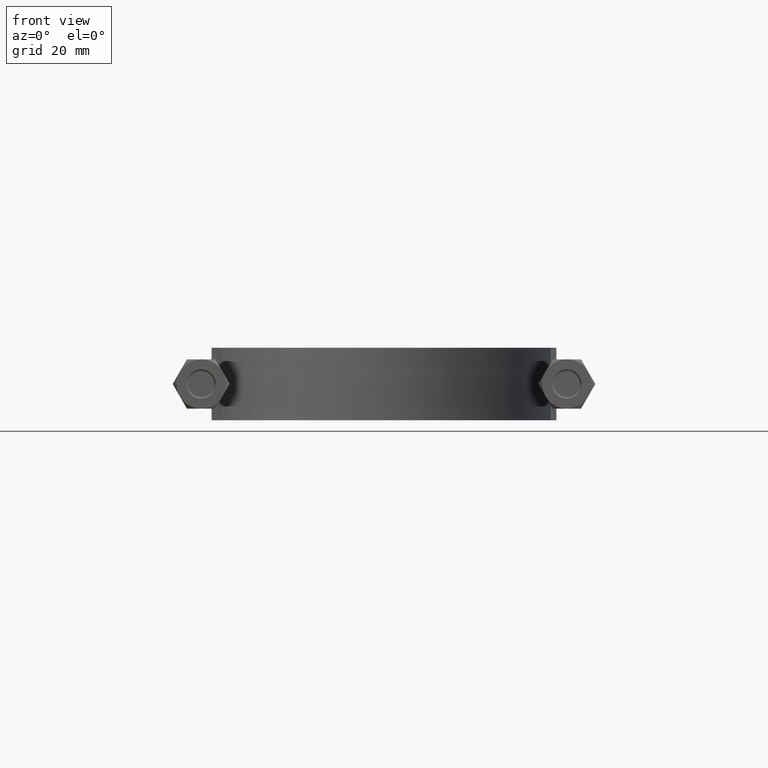
[diagram: clean part render]
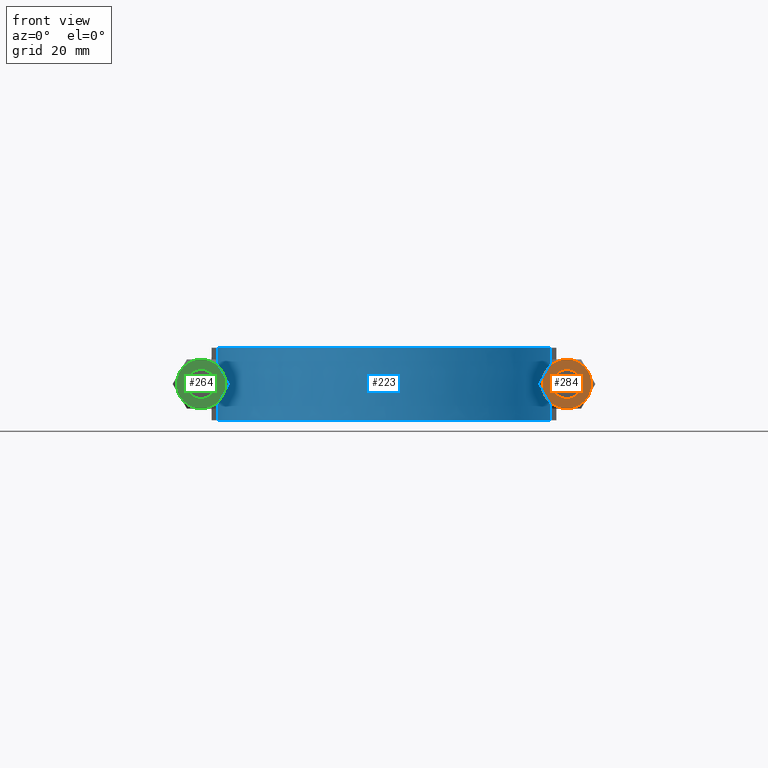
[diagram: same view with three faces highlighted in distinct colors, each labeled with its STEP entity id]
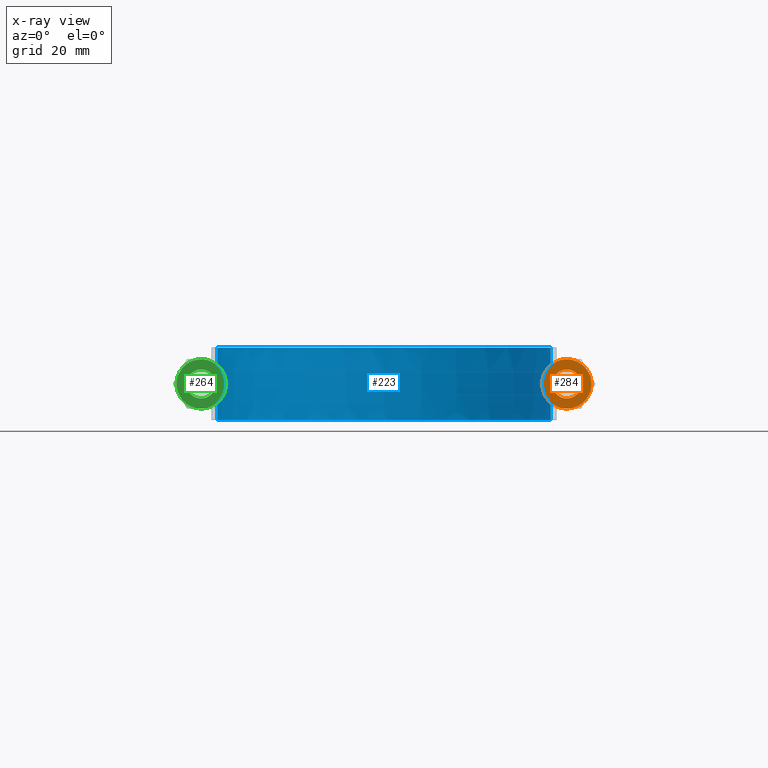
[diagram: x-ray of the same camera — body ghosted, the three highlighted faces saturated]
A machine part, front view with three faces highlighted in distinct colors.
The next image is the same camera in x-ray (body ghosted, the three faces saturated) — at least one of them is partly hidden behind the body in this view.
Their STEP definitions:

[orange] entity #284 — the highlighted planar face has unit normal (0, 1, 0).
#284 = ADVANCED_FACE( '', ( #441, #442 ), #443, .F. );
#441 = FACE_OUTER_BOUND( '', #1263, .T. );
#442 = FACE_BOUND( '', #1264, .T. );
#443 = PLANE( '', #1265 );
#1263 = EDGE_LOOP( '', ( #1741, #1742, #1743, #1744, #1745, #1746 ) );
#1264 = EDGE_LOOP( '', ( #1747 ) );
#1265 = AXIS2_PLACEMENT_3D( '', #1748, #1749, #1750 );
#1741 = ORIENTED_EDGE( '', *, *, #1955, .F. );
#1742 = ORIENTED_EDGE( '', *, *, #1923, .F. );
#1743 = ORIENTED_EDGE( '', *, *, #1945, .F. );
#1744 = ORIENTED_EDGE( '', *, *, #1956, .F. );
#1745 = ORIENTED_EDGE( '', *, *, #1917, .F. );
#1746 = ORIENTED_EDGE( '', *, *, #1957, .F. );
#1747 = ORIENTED_EDGE( '', *, *, #1954, .T. );
#1748 = CARTESIAN_POINT( '', ( 63.0000000000000, 20.0000000000000, -2.44921270764476E-016 ) );
#1749 = DIRECTION( '', ( 9.18247024260625E-049, 1.00000000000000, 6.12303176911190E-017 ) );
#1750 = DIRECTION( '', ( 1.00000000000000, 0.000000000000000, -1.49966072182214E-032 ) );
#1917 = EDGE_CURVE( '', #2130, #2132, #2133, .T. );
#1923 = EDGE_CURVE( '', #2142, #2143, #2144, .T. );
#1945 = EDGE_CURVE( '', #2182, #2142, #2183, .T. );
#1954 = EDGE_CURVE( '', #2196, #2196, #2197, .T. );
#1955 = EDGE_CURVE( '', #2143, #2198, #2199, .T. );
#1956 = EDGE_CURVE( '', #2132, #2182, #2200, .T. );
#1957 = EDGE_CURVE( '', #2198, #2130, #2201, .T. );
#2130 = VERTEX_POINT( '', #2694 );
#2132 = VERTEX_POINT( '', #2701 );
#2133 = CIRCLE( '', #2702, 8.50000000000000 );
#2142 = VERTEX_POINT( '', #2724 );
#2143 = VERTEX_POINT( '', #2725 );
#2144 = CIRCLE( '', #2726, 8.50000000000000 );
#2182 = VERTEX_POINT( '', #2787 );
#2183 = CIRCLE( '', #2788, 8.50000000000000 );
#2196 = VERTEX_POINT( '', #2815 );
#2197 = CIRCLE( '', #2816, 5.00000000000000 );
#2198 = VERTEX_POINT( '', #2817 );
#2199 = CIRCLE( '', #2818, 8.50000000000000 );
#2200 = CIRCLE( '', #2819, 8.50000000000000 );
#2201 = CIRCLE( '', #2820, 8.50000000000000 );
#2694 = CARTESIAN_POINT( '', ( 70.3612159321678, 20.0000000000000, 4.25000000000000 ) );
#2701 = CARTESIAN_POINT( '', ( 70.3612159321678, 20.0000000000000, -4.24999999999999 ) );
#2702 = AXIS2_PLACEMENT_3D( '', #3008, #3009, #3010 );
#2724 = CARTESIAN_POINT( '', ( 55.6387840678323, 20.0000000000000, -4.25000000000000 ) );
#2725 = CARTESIAN_POINT( '', ( 55.6387840678323, 20.0000000000000, 4.25000000000000 ) );
#2726 = AXIS2_PLACEMENT_3D( '', #3014, #3015, #3016 );
#2787 = CARTESIAN_POINT( '', ( 63.0000000000000, 20.0000000000000, -8.50000000000000 ) );
#2788 = AXIS2_PLACEMENT_3D( '', #3055, #3056, #3057 );
#2815 = CARTESIAN_POINT( '', ( 63.0000000000000, 20.0000000000000, 5.00000000000000 ) );
#2816 = AXIS2_PLACEMENT_3D( '', #3068, #3069, #3070 );
#2817 = CARTESIAN_POINT( '', ( 63.0000000000000, 20.0000000000000, 8.50000000000000 ) );
#2818 = AXIS2_PLACEMENT_3D( '', #3071, #3072, #3073 );
#2819 = AXIS2_PLACEMENT_3D( '', #3074, #3075, #3076 );
#2820 = AXIS2_PLACEMENT_3D( '', #3077, #3078, #3079 );
#3008 = CARTESIAN_POINT( '', ( 63.0000000000000, 20.0000000000000, -2.44921270764476E-016 ) );
#3009 = DIRECTION( '', ( 9.18247024260625E-049, 1.00000000000000, 6.12303176911190E-017 ) );
#3010 = DIRECTION( '', ( 0.000000000000000, -6.12303176911190E-017, 1.00000000000000 ) );
#3014 = CARTESIAN_POINT( '', ( 63.0000000000000, 20.0000000000000, -2.44921270764476E-016 ) );
#3015 = DIRECTION( '', ( 9.18247024260625E-049, 1.00000000000000, 6.12303176911190E-017 ) );
#3016 = DIRECTION( '', ( 0.000000000000000, -6.12303176911190E-017, 1.00000000000000 ) );
#3055 = CARTESIAN_POINT( '', ( 63.0000000000000, 20.0000000000000, -2.44921270764476E-016 ) );
#3056 = DIRECTION( '', ( 9.18247024260625E-049, 1.00000000000000, 6.12303176911190E-017 ) );
#3057 = DIRECTION( '', ( 0.000000000000000, -6.12303176911190E-017, 1.00000000000000 ) );
#3068 = CARTESIAN_POINT( '', ( 63.0000000000000, 20.0000000000000, -2.44921270764476E-016 ) );
#3069 = DIRECTION( '', ( 9.18247024260625E-049, 1.00000000000000, 6.12303176911190E-017 ) );
#3070 = DIRECTION( '', ( 0.000000000000000, -6.12303176911190E-017, 1.00000000000000 ) );
#3071 = CARTESIAN_POINT( '', ( 63.0000000000000, 20.0000000000000, -2.44921270764476E-016 ) );
#3072 = DIRECTION( '', ( 9.18247024260625E-049, 1.00000000000000, 6.12303176911190E-017 ) );
#3073 = DIRECTION( '', ( 0.000000000000000, -6.12303176911190E-017, 1.00000000000000 ) );
#3074 = CARTESIAN_POINT( '', ( 63.0000000000000, 20.0000000000000, -2.44921270764476E-016 ) );
#3075 = DIRECTION( '', ( 9.18247024260625E-049, 1.00000000000000, 6.12303176911190E-017 ) );
#3076 = DIRECTION( '', ( 0.000000000000000, -6.12303176911190E-017, 1.00000000000000 ) );
#3077 = CARTESIAN_POINT( '', ( 63.0000000000000, 20.0000000000000, -2.44921270764476E-016 ) );
#3078 = DIRECTION( '', ( 9.18247024260625E-049, 1.00000000000000, 6.12303176911190E-017 ) );
#3079 = DIRECTION( '', ( 0.000000000000000, -6.12303176911190E-017, 1.00000000000000 ) );

[blue] entity #223 — the highlighted face is a SurfaceOfExtrusion surface.
#223 = ADVANCED_FACE( '', ( #303 ), #304, .T. );
#303 = FACE_OUTER_BOUND( '', #965, .T. );
#304 = SURFACE_OF_LINEAR_EXTRUSION( '', #966, #967 );
#965 = EDGE_LOOP( '', ( #1309, #1310, #1311, #1312 ) );
#966 = B_SPLINE_CURVE_WITH_KNOTS( '', 3, ( #1313, #1314, #1315, #1316, #1317, #1318, #1319, #1320, #1321, #1322, #1323, #1324, #1325, #1326, #1327, #1328 ), .UNSPECIFIED., .F., .F., ( 4, 3, 1, 1, 1, 1, 1, 1, 3, 4 ), ( -8.93693843594010, -8.00000000000000, -7.00000000000000, -6.00000000000000, -5.00000000000000, -4.00000000000000, -3.00000000000000, -2.00000000000000, -1.00000000000000, -0.0630615640599001 ), .UNSPECIFIED. );
#967 = VECTOR( '', #1329, 1000.00000000000 );
#1309 = ORIENTED_EDGE( '', *, *, #1817, .T. );
#1310 = ORIENTED_EDGE( '', *, *, #1827, .T. );
#1311 = ORIENTED_EDGE( '', *, *, #1822, .F. );
#1312 = ORIENTED_EDGE( '', *, *, #1828, .T. );
#1313 = CARTESIAN_POINT( '', ( 57.4000000000000, 79.3000000000000, 12.5000100000910 ) );
#1314 = CARTESIAN_POINT( '', ( 57.4000000000000, 98.0700000000000, 12.5000100000910 ) );
#1315 = CARTESIAN_POINT( '', ( 57.4000000000000, 116.840000000000, 12.5000100000910 ) );
#1316 = CARTESIAN_POINT( '', ( 57.4000000000000, 135.610000000000, 12.5000100000910 ) );
#1317 = CARTESIAN_POINT( '', ( 57.4000000000000, 144.180493203978, 12.5000100000910 ) );
#1318 = CARTESIAN_POINT( '', ( 53.4810424094545, 161.371852668646, 12.5000100000910 ) );
#1319 = CARTESIAN_POINT( '', ( 37.0100296725023, 182.017335605858, 12.5000100000910 ) );
#1320 = CARTESIAN_POINT( '', ( 13.2087266606841, 193.481567469912, 12.5000100000910 ) );
#1321 = CARTESIAN_POINT( '', ( -13.2087266606841, 193.481567469912, 12.5000100000910 ) );
#1322 = CARTESIAN_POINT( '', ( -37.0100296725023, 182.017335605858, 12.5000100000910 ) );
#1323 = CARTESIAN_POINT( '', ( -53.4810424094545, 161.371852668646, 12.5000100000910 ) );
#1324 = CARTESIAN_POINT( '', ( -57.4000000000000, 144.180493203978, 12.5000100000910 ) );
#1325 = CARTESIAN_POINT( '', ( -57.4000000000000, 135.610000000000, 12.5000100000910 ) );
#1326 = CARTESIAN_POINT( '', ( -57.4000000000000, 116.840000000000, 12.5000100000910 ) );
#1327 = CARTESIAN_POINT( '', ( -57.4000000000000, 98.0700000000000, 12.5000100000910 ) );
#1328 = CARTESIAN_POINT( '', ( -57.4000000000000, 79.3000000000000, 12.5000100000910 ) );
#1329 = DIRECTION( '', ( 0.000000000000000, 0.000000000000000, -1.00000000000000 ) );
#1817 = EDGE_CURVE( '', #1967, #1968, #1969, .T. );
#1822 = EDGE_CURVE( '', #1975, #1978, #1979, .T. );
#1827 = EDGE_CURVE( '', #1968, #1978, #1985, .F. );
#1828 = EDGE_CURVE( '', #1975, #1967, #1986, .T. );
#1967 = VERTEX_POINT( '', #2213 );
#1968 = VERTEX_POINT( '', #2214 );
#1969 = LINE( '', #2215, #2216 );
#1975 = VERTEX_POINT( '', #2254 );
#1978 = VERTEX_POINT( '', #2258 );
#1979 = LINE( '', #2259, #2260 );
#1985 = B_SPLINE_CURVE_WITH_KNOTS( '', 3, ( #2327, #2328, #2329, #2330, #2331, #2332, #2333, #2334, #2335, #2336, #2337, #2338, #2339, #2340, #2341, #2342 ), .UNSPECIFIED., .F., .F., ( 4, 3, 1, 1, 1, 1, 1, 1, 3, 4 ), ( -8.93693843594010, -8.00000000000000, -7.00000000000000, -6.00000000000000, -5.00000000000000, -4.00000000000000, -3.00000000000000, -2.00000000000000, -1.00000000000000, -0.0630615640599001 ), .UNSPECIFIED. );
#1986 = B_SPLINE_CURVE_WITH_KNOTS( '', 3, ( #2343, #2344, #2345, #2346, #2347, #2348, #2349, #2350, #2351, #2352, #2353, #2354, #2355, #2356, #2357, #2358, #2359, #2360, #2361, #2362, #2363, #2364, #2365, #2366, #2367, #2368, #2369, #2370, #2371, #2372, #2373, #2374, #2375, #2376, #2377, #2378, #2379, #2380, #2381, #2382, #2383, #2384, #2385, #2386, #2387, #2388, #2389, #2390, #2391, #2392, #2393, #2394, #2395, #2396, #2397, #2398, #2399, #2400, #2401, #2402, #2403, #2404, #2405, #2406, #2407, #2408, #2409, #2410, #2411, #2412, #2413, #2414, #2415, #2416, #2417, #2418, #2419, #2420, #2421, #2422, #2423, #2424, #2425, #2426, #2427, #2428, #2429, #2430 ), .UNSPECIFIED., .F., .F., ( 4, 1, 2, 2, 2, 2, 2, 2, 2, 2, 2, 2, 2, 2, 2, 2, 2, 2, 2, 2, 2, 2, 2, 2, 2, 2, 2, 2, 2, 2, 2, 2, 2, 2, 2, 2, 2, 2, 2, 2, 2, 2, 2, 1, 4 ), ( 1.38777878078145E-017, 0.0368006591004065, 0.0552009886506098, 0.0575010298443853, 0.0598010710381607, 0.0644011534257116, 0.0736013182008134, 0.0782014005883642, 0.0805014417821396, 0.0828014829759150, 0.0920016477510166, 0.0966017301385674, 0.0989017713323428, 0.101201812526118, 0.110401977301220, 0.115002059688771, 0.117302100882546, 0.119602142076322, 0.128802306851423, 0.133402389238974, 0.135702430432750, 0.138002471626525, 0.147202636401627, 0.156402801176729, 0.158702842370504, 0.161002883564280, 0.165602965951830, 0.174803130726932, 0.177103171920708, 0.179403213114483, 0.184003295502034, 0.193203460277136, 0.195503501470911, 0.197803542664687, 0.202403625052238, 0.211603789827340, 0.213903831021115, 0.216203872214890, 0.220803954602441, 0.230004119377543, 0.234604201765094, 0.236904242958870, 0.239204284152645, 0.257604613702848, 0.294405272803255 ), .UNSPECIFIED. );
#2213 = CARTESIAN_POINT( '', ( -57.4000000000000, 79.3000000000000, 12.5000000000000 ) );
#2214 = CARTESIAN_POINT( '', ( -57.4000000000000, 79.3000000000000, -12.5000000000000 ) );
#2215 = CARTESIAN_POINT( '', ( -57.4000000000000, 79.3000000000000, 12.5000100000910 ) );
#2216 = VECTOR( '', #2855, 1000.00000000000 );
#2254 = CARTESIAN_POINT( '', ( 57.4000000000000, 79.3000000000000, 12.5000000000000 ) );
#2258 = CARTESIAN_POINT( '', ( 57.4000000000000, 79.3000000000000, -12.5000000000000 ) );
#2259 = CARTESIAN_POINT( '', ( 57.4000000000000, 79.3000000000000, 12.5000100000910 ) );
#2260 = VECTOR( '', #2859, 1000.00000000000 );
#2327 = CARTESIAN_POINT( '', ( 57.4000000000000, 79.3000000000000, -12.5000000000000 ) );
#2328 = CARTESIAN_POINT( '', ( 57.4000000000000, 98.0700000000000, -12.5000000000000 ) );
#2329 = CARTESIAN_POINT( '', ( 57.4000000000000, 116.840000000000, -12.5000000000000 ) );
#2330 = CARTESIAN_POINT( '', ( 57.4000000000000, 135.610000000000, -12.5000000000000 ) );
#2331 = CARTESIAN_POINT( '', ( 57.4000000000000, 144.180493203978, -12.5000000000000 ) );
#2332 = CARTESIAN_POINT( '', ( 53.4810424094545, 161.371852668646, -12.5000000000000 ) );
#2333 = CARTESIAN_POINT( '', ( 37.0100296725023, 182.017335605858, -12.5000000000000 ) );
#2334 = CARTESIAN_POINT( '', ( 13.2087266606841, 193.481567469912, -12.5000000000000 ) );
#2335 = CARTESIAN_POINT( '', ( -13.2087266606841, 193.481567469912, -12.5000000000000 ) );
#2336 = CARTESIAN_POINT( '', ( -37.0100296725023, 182.017335605858, -12.5000000000000 ) );
#2337 = CARTESIAN_POINT( '', ( -53.4810424094545, 161.371852668646, -12.5000000000000 ) );
#2338 = CARTESIAN_POINT( '', ( -57.4000000000000, 144.180493203978, -12.5000000000000 ) );
#2339 = CARTESIAN_POINT( '', ( -57.4000000000000, 135.610000000000, -12.5000000000000 ) );
#2340 = CARTESIAN_POINT( '', ( -57.4000000000000, 116.840000000000, -12.5000000000000 ) );
#2341 = CARTESIAN_POINT( '', ( -57.4000000000000, 98.0700000000000, -12.5000000000000 ) );
#2342 = CARTESIAN_POINT( '', ( -57.4000000000000, 79.3000000000000, -12.5000000000000 ) );
#2343 = CARTESIAN_POINT( '', ( 57.4000000000000, 79.3000000000000, 12.5000000000000 ) );
#2344 = CARTESIAN_POINT( '', ( 57.4000000000000, 91.5668971504807, 12.5000000000000 ) );
#2345 = CARTESIAN_POINT( '', ( 57.4000000000000, 109.967242876202, 12.5000000000000 ) );
#2346 = CARTESIAN_POINT( '', ( 57.4000000000000, 128.367588601923, 12.5000000000000 ) );
#2347 = CARTESIAN_POINT( '', ( 57.4000000000000, 135.267718249068, 12.5000000000000 ) );
#2348 = CARTESIAN_POINT( '', ( 57.4036066457802, 136.034404103252, 12.5000000000000 ) );
#2349 = CARTESIAN_POINT( '', ( 57.3712056389476, 137.567723284528, 12.5000000000000 ) );
#2350 = CARTESIAN_POINT( '', ( 57.3393359788148, 138.335375304587, 12.5000000000000 ) );
#2351 = CARTESIAN_POINT( '', ( 57.1976234100830, 140.630663469964, 12.5000000000000 ) );
#2352 = CARTESIAN_POINT( '', ( 57.0421967518527, 142.147180453960, 12.5000000000000 ) );
#2353 = CARTESIAN_POINT( '', ( 56.4004013757545, 146.657352705709, 12.5000000000000 ) );
#2354 = CARTESIAN_POINT( '', ( 55.7399883057786, 149.611959318388, 12.5000000000000 ) );
#2355 = CARTESIAN_POINT( '', ( 54.4013047063943, 153.965777471156, 12.5000000000000 ) );
#2356 = CARTESIAN_POINT( '', ( 53.8966972928596, 155.403952132018, 12.5000000000000 ) );
#2357 = CARTESIAN_POINT( '', ( 53.0487681131459, 157.540793277909, 12.5000000000000 ) );
#2358 = CARTESIAN_POINT( '', ( 52.7511260023257, 158.248939019185, 12.5000000000000 ) );
#2359 = CARTESIAN_POINT( '', ( 52.1306487491249, 159.645579267383, 12.5000000000000 ) );
#2360 = CARTESIAN_POINT( '', ( 51.8071932048134, 160.335643312284, 12.5000000000000 ) );
#2361 = CARTESIAN_POINT( '', ( 50.1243560027938, 163.745011154793, 12.5000000000000 ) );
#2362 = CARTESIAN_POINT( '', ( 48.5704537429598, 166.342805722192, 12.5000000000000 ) );
#2363 = CARTESIAN_POINT( '', ( 45.9378759805746, 170.051022440817, 12.5000000000000 ) );
#2364 = CARTESIAN_POINT( '', ( 45.0097482486540, 171.255485755391, 12.5000000000000 ) );
#2365 = CARTESIAN_POINT( '', ( 43.5399840512470, 173.013724230868, 12.5000000000000 ) );
#2366 = CARTESIAN_POINT( '', ( 43.0360401908088, 173.592882580464, 12.5000000000000 ) );
#2367 = CARTESIAN_POINT( '', ( 42.0071679355062, 174.728730541199, 12.5000000000000 ) );
#2368 = CARTESIAN_POINT( '', ( 41.4830799771195, 175.284602734684, 12.5000000000000 ) );
#2369 = CARTESIAN_POINT( '', ( 38.8150256208345, 178.004509636062, 12.5000000000000 ) );
#2370 = CARTESIAN_POINT( '', ( 36.5289375337688, 179.991083678086, 12.5000000000000 ) );
#2371 = CARTESIAN_POINT( '', ( 32.8725465474708, 182.687177301449, 12.5000000000000 ) );
#2372 = CARTESIAN_POINT( '', ( 31.6159998625507, 183.538738914915, 12.5000000000000 ) );
#2373 = CARTESIAN_POINT( '', ( 29.6741600235066, 184.744883379300, 12.5000000000000 ) );
#2374 = CARTESIAN_POINT( '', ( 29.0173621705766, 185.135046972002, 12.5000000000000 ) );
#2375 = CARTESIAN_POINT( '', ( 27.6844813094560, 185.891293691475, 12.5000000000000 ) );
#2376 = CARTESIAN_POINT( '', ( 27.0092860879621, 186.256786401143, 12.5000000000000 ) );
#2377 = CARTESIAN_POINT( '', ( 23.6148955512581, 188.008321558919, 12.5000000000000 ) );
#2378 = CARTESIAN_POINT( '', ( 20.8188839208598, 189.181221130253, 12.5000000000000 ) );
#2379 = CARTESIAN_POINT( '', ( 16.5063575914378, 190.604430974849, 12.5000000000000 ) );
#2380 = CARTESIAN_POINT( '', ( 15.0489724833801, 191.022456876127, 12.5000000000000 ) );
#2381 = CARTESIAN_POINT( '', ( 12.8322199583376, 191.562489310090, 12.5000000000000 ) );
#2382 = CARTESIAN_POINT( '', ( 12.0881682606315, 191.727937467103, 12.5000000000000 ) );
#2383 = CARTESIAN_POINT( '', ( 10.5896803128534, 192.029378956679, 12.5000000000000 ) );
#2384 = CARTESIAN_POINT( '', ( 9.83354107507642, 192.165648447286, 12.5000000000000 ) );
#2385 = CARTESIAN_POINT( '', ( 6.05033946504669, 192.768951449387, 12.5000000000000 ) );
#2386 = CARTESIAN_POINT( '', ( 3.02331961872748, 193.004107282322, 12.5000000000000 ) );
#2387 = CARTESIAN_POINT( '', ( -3.03159229771705, 193.003674706655, 12.5000000000000 ) );
#2388 = CARTESIAN_POINT( '', ( -6.05948435362845, 192.768093969407, 12.5000000000000 ) );
#2389 = CARTESIAN_POINT( '', ( -9.84492369258702, 192.163681704027, 12.5000000000000 ) );
#2390 = CARTESIAN_POINT( '', ( -10.6002721762767, 192.027389123450, 12.5000000000000 ) );
#2391 = CARTESIAN_POINT( '', ( -12.0978185021847, 191.725853405145, 12.5000000000000 ) );
#2392 = CARTESIAN_POINT( '', ( -12.8414452252183, 191.560367013091, 12.5000000000000 ) );
#2393 = CARTESIAN_POINT( '', ( -15.0570550081488, 191.020235378931, 12.5000000000000 ) );
#2394 = CARTESIAN_POINT( '', ( -16.5138535706966, 190.602163316093, 12.5000000000000 ) );
#2395 = CARTESIAN_POINT( '', ( -20.8250913381979, 189.178758755140, 12.5000000000000 ) );
#2396 = CARTESIAN_POINT( '', ( -23.6208691240754, 188.005657850112, 12.5000000000000 ) );
#2397 = CARTESIAN_POINT( '', ( -27.0156329102763, 186.253406103617, 12.5000000000000 ) );
#2398 = CARTESIAN_POINT( '', ( -27.6910147520962, 185.887696886022, 12.5000000000000 ) );
#2399 = CARTESIAN_POINT( '', ( -29.0234575114926, 185.131477440111, 12.5000000000000 ) );
#2400 = CARTESIAN_POINT( '', ( -29.6800585802789, 184.741324040592, 12.5000000000000 ) );
#2401 = CARTESIAN_POINT( '', ( -31.6213689725300, 183.535193660409, 12.5000000000000 ) );
#2402 = CARTESIAN_POINT( '', ( -32.8776437603807, 182.683619457022, 12.5000000000000 ) );
#2403 = CARTESIAN_POINT( '', ( -36.5334220827475, 179.987374398228, 12.5000000000000 ) );
#2404 = CARTESIAN_POINT( '', ( -38.8193751731555, 178.000549631674, 12.5000000000000 ) );
#2405 = CARTESIAN_POINT( '', ( -41.4874843976752, 175.279993585617, 12.5000000000000 ) );
#2406 = CARTESIAN_POINT( '', ( -42.0115944312470, 174.723974530570, 12.5000000000000 ) );
#2407 = CARTESIAN_POINT( '', ( -43.0405299781914, 173.587794110931, 12.5000000000000 ) );
#2408 = CARTESIAN_POINT( '', ( -43.5442393747026, 173.008765306377, 12.5000000000000 ) );
#2409 = CARTESIAN_POINT( '', ( -45.0135877457228, 171.250627800789, 12.5000000000000 ) );
#2410 = CARTESIAN_POINT( '', ( -45.9415210243653, 170.046162448528, 12.5000000000000 ) );
#2411 = CARTESIAN_POINT( '', ( -48.5736917716305, 166.337694282144, 12.5000000000000 ) );
#2412 = CARTESIAN_POINT( '', ( -50.1275589688897, 163.739408642437, 12.5000000000000 ) );
#2413 = CARTESIAN_POINT( '', ( -51.8104283189418, 160.328866111214, 12.5000000000000 ) );
#2414 = CARTESIAN_POINT( '', ( -52.1338941649285, 159.638538815899, 12.5000000000000 ) );
#2415 = CARTESIAN_POINT( '', ( -52.7543954652597, 158.241312252746, 12.5000000000000 ) );
#2416 = CARTESIAN_POINT( '', ( -53.0520667494113, 157.532782600104, 12.5000000000000 ) );
#2417 = CARTESIAN_POINT( '', ( -53.8993605656225, 155.396631283103, 12.5000000000000 ) );
#2418 = CARTESIAN_POINT( '', ( -54.4036525659498, 153.958777453083, 12.5000000000000 ) );
#2419 = CARTESIAN_POINT( '', ( -55.7415838846628, 149.605493588584, 12.5000000000000 ) );
#2420 = CARTESIAN_POINT( '', ( -56.4017548199478, 146.650676383386, 12.5000000000000 ) );
#2421 = CARTESIAN_POINT( '', ( -57.0431251208449, 142.139233624254, 12.5000000000000 ) );
#2422 = CARTESIAN_POINT( '', ( -57.1984001624354, 140.622133130998, 12.5000000000000 ) );
#2423 = CARTESIAN_POINT( '', ( -57.3398068241163, 138.325705356889, 12.5000000000000 ) );
#2424 = CARTESIAN_POINT( '', ( -57.3715266179354, 137.558403382567, 12.5000000000000 ) );
#2425 = CARTESIAN_POINT( '', ( -57.4036727794919, 136.025333757737, 12.5000000000000 ) );
#2426 = CARTESIAN_POINT( '', ( -57.4000000000000, 135.258769855845, 12.5000000000000 ) );
#2427 = CARTESIAN_POINT( '', ( -57.4000000000000, 128.359743435262, 12.5000000000000 ) );
#2428 = CARTESIAN_POINT( '', ( -57.4000000000000, 109.962339647039, 12.5000000000000 ) );
#2429 = CARTESIAN_POINT( '', ( -57.4000000000000, 91.5649358588154, 12.5000000000000 ) );
#2430 = CARTESIAN_POINT( '', ( -57.4000000000000, 79.2999999999999, 12.5000000000000 ) );
#2855 = DIRECTION( '', ( 0.000000000000000, 0.000000000000000, -1.00000000000000 ) );
#2859 = DIRECTION( '', ( 0.000000000000000, 0.000000000000000, -1.00000000000000 ) );

[green] entity #264 — the highlighted planar face has unit normal (0, 1, 0).
#264 = ADVANCED_FACE( '', ( #394, #395 ), #396, .F. );
#394 = FACE_OUTER_BOUND( '', #1216, .T. );
#395 = FACE_BOUND( '', #1217, .T. );
#396 = PLANE( '', #1218 );
#1216 = EDGE_LOOP( '', ( #1584, #1585, #1586, #1587, #1588, #1589 ) );
#1217 = EDGE_LOOP( '', ( #1590 ) );
#1218 = AXIS2_PLACEMENT_3D( '', #1591, #1592, #1593 );
#1584 = ORIENTED_EDGE( '', *, *, #1908, .F. );
#1585 = ORIENTED_EDGE( '', *, *, #1875, .F. );
#1586 = ORIENTED_EDGE( '', *, *, #1905, .F. );
#1587 = ORIENTED_EDGE( '', *, *, #1885, .F. );
#1588 = ORIENTED_EDGE( '', *, *, #1865, .F. );
#1589 = ORIENTED_EDGE( '', *, *, #1881, .F. );
#1590 = ORIENTED_EDGE( '', *, *, #1900, .T. );
#1591 = CARTESIAN_POINT( '', ( -63.0000000000000, 20.0000000000000, -2.44921270764476E-016 ) );
#1592 = DIRECTION( '', ( 9.18247024260625E-049, 1.00000000000000, 6.12303176911190E-017 ) );
#1593 = DIRECTION( '', ( 1.00000000000000, 0.000000000000000, -1.49966072182214E-032 ) );
#1865 = EDGE_CURVE( '', #2044, #2046, #2047, .T. );
#1875 = EDGE_CURVE( '', #2064, #2065, #2066, .T. );
#1881 = EDGE_CURVE( '', #2074, #2044, #2075, .T. );
#1885 = EDGE_CURVE( '', #2046, #2081, #2082, .T. );
#1900 = EDGE_CURVE( '', #2105, #2105, #2106, .T. );
#1905 = EDGE_CURVE( '', #2081, #2064, #2114, .T. );
#1908 = EDGE_CURVE( '', #2065, #2074, #2118, .T. );
#2044 = VERTEX_POINT( '', #2530 );
#2046 = VERTEX_POINT( '', #2537 );
#2047 = CIRCLE( '', #2538, 8.50000000000000 );
#2064 = VERTEX_POINT( '', #2570 );
#2065 = VERTEX_POINT( '', #2571 );
#2066 = CIRCLE( '', #2572, 8.50000000000000 );
#2074 = VERTEX_POINT( '', #2597 );
#2075 = CIRCLE( '', #2598, 8.50000000000000 );
#2081 = VERTEX_POINT( '', #2614 );
#2082 = CIRCLE( '', #2615, 8.50000000000000 );
#2105 = VERTEX_POINT( '', #2661 );
#2106 = CIRCLE( '', #2662, 5.00000000000000 );
#2114 = CIRCLE( '', #2670, 8.50000000000000 );
#2118 = CIRCLE( '', #2679, 8.50000000000000 );
#2530 = CARTESIAN_POINT( '', ( -55.6387840678323, 20.0000000000000, 4.25000000000000 ) );
#2537 = CARTESIAN_POINT( '', ( -55.6387840678323, 20.0000000000000, -4.25000000000000 ) );
#2538 = AXIS2_PLACEMENT_3D( '', #2924, #2925, #2926 );
#2570 = CARTESIAN_POINT( '', ( -70.3612159321677, 20.0000000000000, -4.25000000000000 ) );
#2571 = CARTESIAN_POINT( '', ( -70.3612159321677, 20.0000000000000, 4.25000000000003 ) );
#2572 = AXIS2_PLACEMENT_3D( '', #2938, #2939, #2940 );
#2597 = CARTESIAN_POINT( '', ( -63.0000000000000, 20.0000000000000, 8.50000000000000 ) );
#2598 = AXIS2_PLACEMENT_3D( '', #2943, #2944, #2945 );
#2614 = CARTESIAN_POINT( '', ( -63.0000000000000, 20.0000000000000, -8.50000000000000 ) );
#2615 = AXIS2_PLACEMENT_3D( '', #2949, #2950, #2951 );
#2661 = CARTESIAN_POINT( '', ( -63.0000000000000, 20.0000000000000, 5.00000000000000 ) );
#2662 = AXIS2_PLACEMENT_3D( '', #2969, #2970, #2971 );
#2670 = AXIS2_PLACEMENT_3D( '', #2984, #2985, #2986 );
#2679 = AXIS2_PLACEMENT_3D( '', #2990, #2991, #2992 );
#2924 = CARTESIAN_POINT( '', ( -63.0000000000000, 20.0000000000000, -2.44921270764476E-016 ) );
#2925 = DIRECTION( '', ( 9.18247024260625E-049, 1.00000000000000, 6.12303176911190E-017 ) );
#2926 = DIRECTION( '', ( 0.000000000000000, -6.12303176911190E-017, 1.00000000000000 ) );
#2938 = CARTESIAN_POINT( '', ( -63.0000000000000, 20.0000000000000, -2.44921270764476E-016 ) );
#2939 = DIRECTION( '', ( 9.18247024260625E-049, 1.00000000000000, 6.12303176911190E-017 ) );
#2940 = DIRECTION( '', ( 0.000000000000000, -6.12303176911190E-017, 1.00000000000000 ) );
#2943 = CARTESIAN_POINT( '', ( -63.0000000000000, 20.0000000000000, -2.44921270764476E-016 ) );
#2944 = DIRECTION( '', ( 9.18247024260625E-049, 1.00000000000000, 6.12303176911190E-017 ) );
#2945 = DIRECTION( '', ( 0.000000000000000, -6.12303176911190E-017, 1.00000000000000 ) );
#2949 = CARTESIAN_POINT( '', ( -63.0000000000000, 20.0000000000000, -2.44921270764476E-016 ) );
#2950 = DIRECTION( '', ( 9.18247024260625E-049, 1.00000000000000, 6.12303176911190E-017 ) );
#2951 = DIRECTION( '', ( 0.000000000000000, -6.12303176911190E-017, 1.00000000000000 ) );
#2969 = CARTESIAN_POINT( '', ( -63.0000000000000, 20.0000000000000, -2.44921270764476E-016 ) );
#2970 = DIRECTION( '', ( 9.18247024260625E-049, 1.00000000000000, 6.12303176911190E-017 ) );
#2971 = DIRECTION( '', ( 0.000000000000000, -6.12303176911190E-017, 1.00000000000000 ) );
#2984 = CARTESIAN_POINT( '', ( -63.0000000000000, 20.0000000000000, -2.44921270764476E-016 ) );
#2985 = DIRECTION( '', ( 9.18247024260625E-049, 1.00000000000000, 6.12303176911190E-017 ) );
#2986 = DIRECTION( '', ( 0.000000000000000, -6.12303176911190E-017, 1.00000000000000 ) );
#2990 = CARTESIAN_POINT( '', ( -63.0000000000000, 20.0000000000000, -2.44921270764476E-016 ) );
#2991 = DIRECTION( '', ( 9.18247024260625E-049, 1.00000000000000, 6.12303176911190E-017 ) );
#2992 = DIRECTION( '', ( 0.000000000000000, -6.12303176911190E-017, 1.00000000000000 ) );